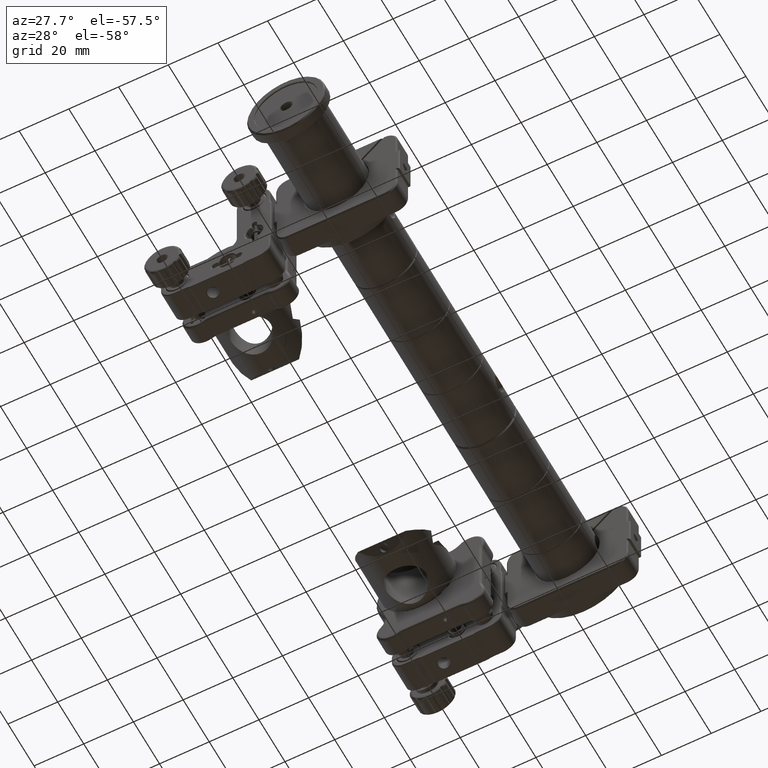
[diagram: clean part render]
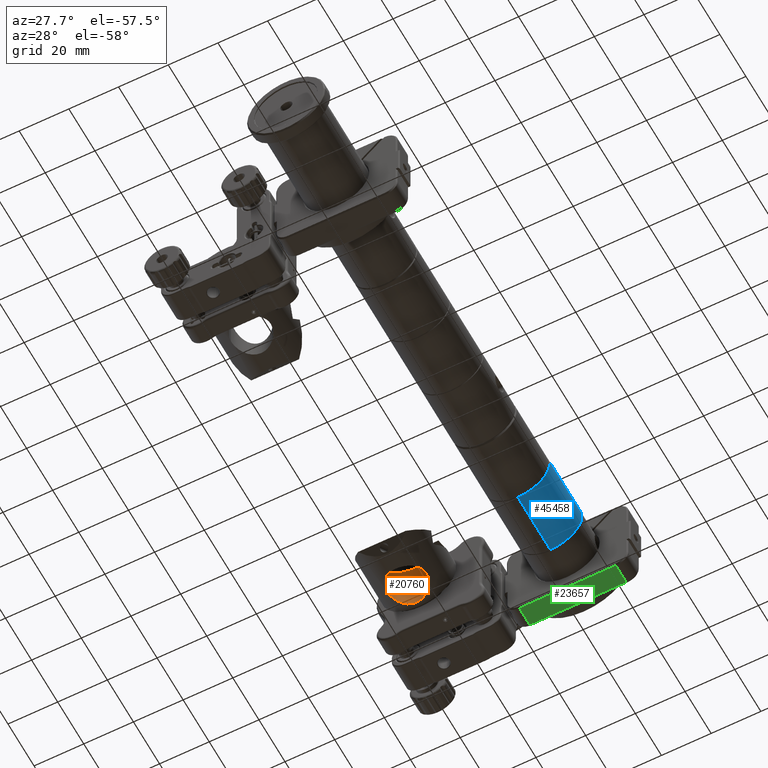
[diagram: same view with three faces highlighted in distinct colors, each labeled with its STEP entity id]
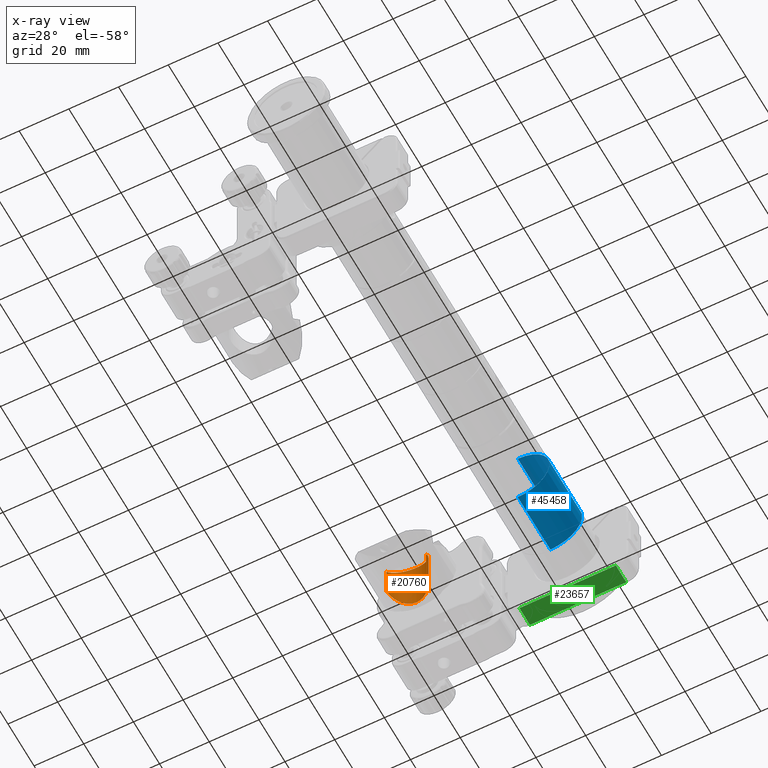
[diagram: x-ray of the same camera — body ghosted, the three highlighted faces saturated]
A machine part, auxiliary view with three faces highlighted in distinct colors.
The next image is the same camera in x-ray (body ghosted, the three faces saturated) — at least one of them is partly hidden behind the body in this view.
Their STEP definitions:

[orange] entity #20760 — the highlighted cylindrical surface (edge-blend (fillet) strip) has radius 8 mm, axis along (0, 0, 1).
#349 = CARTESIAN_POINT ( 'NONE',  ( -59.63535840696203400, -14.73379372571865200, -12.85222683185176100 ) ) ;
#376 = CARTESIAN_POINT ( 'NONE',  ( -43.96740624020648600, -15.77331678230626700, -12.73086655763751900 ) ) ;
#2326 = CARTESIAN_POINT ( 'NONE',  ( -49.04374593692489300, -9.366363103545635800, -14.72759322876122900 ) ) ;
#2379 = CARTESIAN_POINT ( 'NONE',  ( -59.90000000000014800, -16.84363471288829900, -12.68857754044948500 ) ) ;
#4256 =( BOUNDED_CURVE ( )  B_SPLINE_CURVE ( 3, ( #6059, #15693, #15509, #47172 ),
 .UNSPECIFIED., .F., .F. ) 
 B_SPLINE_CURVE_WITH_KNOTS ( ( 4, 4 ),
 ( 4.712388980384689700, 7.853981633974482800 ),
 .UNSPECIFIED. ) 
 CURVE ( )  GEOMETRIC_REPRESENTATION_ITEM ( )  RATIONAL_B_SPLINE_CURVE ( ( 1.000000000000000000, 0.3333333333333333700, 0.3333333333333333700, 1.000000000000000000 ) ) 
 REPRESENTATION_ITEM ( '' )  );
#4497 = CARTESIAN_POINT ( 'NONE',  ( -58.82325154266373300, -12.82672418749662100, -13.30743652911261200 ) ) ;
#4595 = LINE ( 'NONE', #18797, #49854 ) ;
#4686 = CARTESIAN_POINT ( 'NONE',  ( -54.51334824517828500, -9.277918688775976400, -14.77279957164269700 ) ) ;
#4881 = CARTESIAN_POINT ( 'NONE',  ( -59.90000000000015500, -16.31256464641122500, -12.68857754044948500 ) ) ;
#4907 = CARTESIAN_POINT ( 'NONE',  ( -44.11257777288847100, -14.99271165135742700, -12.82029098626782500 ) ) ;
#5093 = CARTESIAN_POINT ( 'NONE',  ( -44.33333784768578300, -14.23303700117035400, -12.95198035539512200 ) ) ;
#6059 = CARTESIAN_POINT ( 'NONE',  ( -43.89999999999994200, -16.84363471288829900, 8.960288348532814000E-014 ) ) ;
#6162 = VECTOR ( 'NONE', #43999, 1000.000000000000000 ) ;
#6870 = CARTESIAN_POINT ( 'NONE',  ( -49.28991020731979200, -9.276776697203709800, -14.77338439190171800 ) ) ;
#8130 = CARTESIAN_POINT ( 'NONE',  ( -51.90000000000004100, -8.843634712888198000, -15.00000000000003200 ) ) ;
#10394 = CARTESIAN_POINT ( 'NONE',  ( -47.00292856020301000, -10.49617367416404300, -14.18533946087028500 ) ) ;
#12349 = CARTESIAN_POINT ( 'NONE',  ( -59.90000000000014800, -16.84363471288829900, 15.22385620915023500 ) ) ;
#12857 = VERTEX_POINT ( 'NONE', #29375 ) ;
#13275 = CARTESIAN_POINT ( 'NONE',  ( -43.89999999999994200, -16.84363471288829900, 8.960288348532814000E-014 ) ) ;
#13553 = CARTESIAN_POINT ( 'NONE',  ( -54.00904379259162600, -9.122133415276739000, -14.85318587089765100 ) ) ;
#14140 = CARTESIAN_POINT ( 'NONE',  ( -45.89079483011231300, -11.55632142819604300, -13.74487954241183700 ) ) ;
#14530 = CARTESIAN_POINT ( 'NONE',  ( -43.91361012622812200, -16.30586058320728400, -12.69718802926073800 ) ) ;
#15421 = CYLINDRICAL_SURFACE ( 'NONE', #54099, 8.000000000000104800 ) ;
#15509 = CARTESIAN_POINT ( 'NONE',  ( -59.90000000000016200, -0.8436347128880917800, 16.00000000000063900 ) ) ;
#15693 = CARTESIAN_POINT ( 'NONE',  ( -43.89999999999994200, -0.8436347128880917800, 16.00000000000063600 ) ) ;
#18296 = CARTESIAN_POINT ( 'NONE',  ( -58.25614396339069100, -11.95821551452893200, -13.59054130451622600 ) ) ;
#18372 = EDGE_CURVE ( 'NONE', #12857, #53404, #38893, .T. ) ;
#18706 = CARTESIAN_POINT ( 'NONE',  ( -45.56339923907944500, -11.95346913890319300, -13.59704935660371000 ) ) ;
#18797 = CARTESIAN_POINT ( 'NONE',  ( -43.89999999999994200, -16.84363471288829900, 15.22385620915023500 ) ) ;
#20686 = CARTESIAN_POINT ( 'NONE',  ( -47.86777186066898800, -9.914514526530943800, -14.45497494079412900 ) ) ;
#20760 = ADVANCED_FACE ( 'NONE', ( #40929 ), #15421, .F. ) ;
#21771 = VERTEX_POINT ( 'NONE', #2379 ) ;
#22666 = CARTESIAN_POINT ( 'NONE',  ( -55.49299045899373800, -9.676384892923422900, -14.57182277508528600 ) ) ;
#22854 = CARTESIAN_POINT ( 'NONE',  ( -53.75317770107001500, -9.056726097640226000, -14.88737484036429700 ) ) ;
#22929 = ORIENTED_EDGE ( 'NONE', *, *, #18372, .F. ) ;
#25308 = EDGE_CURVE ( 'NONE', #21771, #45629, #54250, .T. ) ;
#26341 = EDGE_CURVE ( 'NONE', #53404, #21771, #34308, .T. ) ;
#26646 = CARTESIAN_POINT ( 'NONE',  ( -56.80612724011899700, -10.50350234351285500, -14.18208317508987000 ) ) ;
#27031 = CARTESIAN_POINT ( 'NONE',  ( -52.16638099603770200, -8.843634712888198000, -15.00000000000003700 ) ) ;
#27279 = ORIENTED_EDGE ( 'NONE', *, *, #25308, .F. ) ;
#27428 = CARTESIAN_POINT ( 'NONE',  ( -59.47970355668643100, -14.23279417818684900, -12.94607581582516400 ) ) ;
#27451 = CARTESIAN_POINT ( 'NONE',  ( -43.89999999999994200, -16.84363471288829900, -12.68857754044948600 ) ) ;
#29375 = CARTESIAN_POINT ( 'NONE',  ( -43.89999999999994200, -16.84363471288829900, -12.68857754044948600 ) ) ;
#29798 = CARTESIAN_POINT ( 'NONE',  ( -48.32359005587002100, -9.668650121797973900, -14.57566637414125800 ) ) ;
#31590 = CARTESIAN_POINT ( 'NONE',  ( -57.20849671120283400, -10.83677188141393600, -14.03468217593877700 ) ) ;
#31781 = ORIENTED_EDGE ( 'NONE', *, *, #34736, .T. ) ;
#31975 = CARTESIAN_POINT ( 'NONE',  ( -59.84765202344993200, -15.78437743089706700, -12.72204117017708400 ) ) ;
#31997 = CARTESIAN_POINT ( 'NONE',  ( -44.00738823750563000, -15.51076536837137700, -12.75580203211174900 ) ) ;
#32201 = CARTESIAN_POINT ( 'NONE',  ( -43.89999999999994900, -16.57670244805500200, -12.68857754044949000 ) ) ;
#34308 = B_SPLINE_CURVE_WITH_KNOTS ( 'NONE', 3,
 ( #40684, #27031, #40304, #45203, #54299, #22854, #13553, #4686, #53716, #22666, #36316, #26646, #31590, #54486, #18296, #45017, #4497, #36123, #45395, #27428, #349, #31975, #4881, #35741 ),
 .UNSPECIFIED., .F., .F.,
 ( 4, 2, 2, 2, 2, 2, 2, 2, 2, 2, 2, 4 ),
 ( 0.02551642818258202300, 0.02631280244010036900, 0.02710917669761871500, 0.02790555095513706100, 0.02870192521265540700, 0.03029467372769211900, 0.03188742224272883600, 0.03348017075776554100, 0.03427654501528389100, 0.03507291927280224000, 0.03666566778783895300, 0.03825841630287565900 ),
 .UNSPECIFIED. ) ;
#34736 = EDGE_CURVE ( 'NONE', #49276, #45629, #4256, .T. ) ;
#34952 = CARTESIAN_POINT ( 'NONE',  ( -59.90000000000014800, -16.84363471288829900, 8.960288348532814000E-014 ) ) ;
#35741 = CARTESIAN_POINT ( 'NONE',  ( -59.90000000000014800, -16.84363471288829900, -12.68857754044948500 ) ) ;
#35784 = CARTESIAN_POINT ( 'NONE',  ( -51.90000000000004100, -16.84363471288829900, 15.22385620915023500 ) ) ;
#36123 = CARTESIAN_POINT ( 'NONE',  ( -59.06840641771938700, -13.28260515356170200, -13.17699618007670300 ) ) ;
#36316 = CARTESIAN_POINT ( 'NONE',  ( -55.94914072308603900, -9.924688090599159900, -14.45012204398464900 ) ) ;
#37511 = CARTESIAN_POINT ( 'NONE',  ( -50.83934835912857200, -8.896381222233712200, -14.97166650715896600 ) ) ;
#38893 = B_SPLINE_CURVE_WITH_KNOTS ( 'NONE', 3,
 ( #27451, #32201, #14530, #376, #31997, #4907, #45623, #5093, #46000, #55263, #41672, #41280, #18706, #14140, #46197, #54887, #10394, #20686, #29798, #2326, #6870, #57065, #52146, #37511, #42052, #47601 ),
 .UNSPECIFIED., .F., .F.,
 ( 4, 2, 2, 2, 2, 2, 2, 2, 2, 2, 2, 2, 4 ),
 ( 0.01276757034206472600, 0.01356437395709705700, 0.01436117757212938700, 0.01515798118716172300, 0.01595478480219405700, 0.01754839203225872600, 0.01834519564729106300, 0.01914199926232339900, 0.02073560649238805100, 0.02232921372245270900, 0.02312601733748503500, 0.02392282095251736400, 0.02551642818258202300 ),
 .UNSPECIFIED. ) ;
#40304 = CARTESIAN_POINT ( 'NONE',  ( -52.43543996369143700, -8.857047829954074900, -14.99283321040807600 ) ) ;
#40684 = CARTESIAN_POINT ( 'NONE',  ( -51.90000000000004100, -8.843634712888198000, -15.00000000000003200 ) ) ;
#40929 = FACE_OUTER_BOUND ( 'NONE', #45656, .T. ) ;
#41280 = CARTESIAN_POINT ( 'NONE',  ( -45.40778133963682700, -12.16198187483118400, -13.52320181177040200 ) ) ;
#41672 = CARTESIAN_POINT ( 'NONE',  ( -44.97488250446132700, -12.80508876252389600, -13.30963219538150000 ) ) ;
#42052 = CARTESIAN_POINT ( 'NONE',  ( -51.36695077442581700, -8.843634712888201600, -15.00000000000003600 ) ) ;
#43999 = DIRECTION ( 'NONE',  ( 0.0000000000000000000, 8.204656390015226500E-017, 1.000000000000000000 ) ) ;
#45017 = CARTESIAN_POINT ( 'NONE',  ( -58.68853605656795500, -12.60302745502532700, -13.37690633020039100 ) ) ;
#45203 = CARTESIAN_POINT ( 'NONE',  ( -52.97037201097392500, -8.911007799217234300, -14.96415875978188100 ) ) ;
#45395 = CARTESIAN_POINT ( 'NONE',  ( -59.17967062678677300, -13.51594870881263200, -13.11562395864504000 ) ) ;
#45623 = CARTESIAN_POINT ( 'NONE',  ( -44.17778720822404600, -14.73720974669012700, -12.85984451120375000 ) ) ;
#45629 = VERTEX_POINT ( 'NONE', #34952 ) ;
#45656 = EDGE_LOOP ( 'NONE', ( #22929, #49913, #31781, #27279, #51009 ) ) ;
#46000 = CARTESIAN_POINT ( 'NONE',  ( -44.42419470030297600, -13.98340980101714100, -13.00484229207791700 ) ) ;
#46197 = CARTESIAN_POINT ( 'NONE',  ( -46.06307592061169500, -11.36679808500186100, -13.81913387922053000 ) ) ;
#47172 = CARTESIAN_POINT ( 'NONE',  ( -59.90000000000014800, -16.84363471288829900, 8.960288348532814000E-014 ) ) ;
#47601 = CARTESIAN_POINT ( 'NONE',  ( -51.90000000000004100, -8.843634712888198000, -15.00000000000003200 ) ) ;
#49043 = DIRECTION ( 'NONE',  ( -1.000000000000000000, 0.0000000000000000000, 0.0000000000000000000 ) ) ;
#49276 = VERTEX_POINT ( 'NONE', #13275 ) ;
#49854 = VECTOR ( 'NONE', #49883, 1000.000000000000000 ) ;
#49883 = DIRECTION ( 'NONE',  ( 0.0000000000000000000, 8.204656390015226500E-017, 1.000000000000000000 ) ) ;
#49913 = ORIENTED_EDGE ( 'NONE', *, *, #54149, .T. ) ;
#51009 = ORIENTED_EDGE ( 'NONE', *, *, #26341, .F. ) ;
#52146 = CARTESIAN_POINT ( 'NONE',  ( -50.05602517677289100, -9.054494077471135300, -14.88854263611863300 ) ) ;
#53404 = VERTEX_POINT ( 'NONE', #8130 ) ;
#53716 = CARTESIAN_POINT ( 'NONE',  ( -54.76277857063624300, -9.368725920096283100, -14.72638444127531100 ) ) ;
#53947 = DIRECTION ( 'NONE',  ( 0.0000000000000000000, 8.204656390015226500E-017, 1.000000000000000000 ) ) ;
#54099 = AXIS2_PLACEMENT_3D ( 'NONE', #35784, #53947, #49043 ) ;
#54149 = EDGE_CURVE ( 'NONE', #12857, #49276, #4595, .T. ) ;
#54250 = LINE ( 'NONE', #12349, #6162 ) ;
#54299 = CARTESIAN_POINT ( 'NONE',  ( -53.23384128288158500, -8.951164832930025700, -14.94285998935062300 ) ) ;
#54486 = CARTESIAN_POINT ( 'NONE',  ( -57.93143509999678300, -11.56307328028224100, -13.73951351929870600 ) ) ;
#54887 = CARTESIAN_POINT ( 'NONE',  ( -46.60574053353670400, -10.82429045207663700, -14.04006382546808100 ) ) ;
#55263 = CARTESIAN_POINT ( 'NONE',  ( -44.72871842588327200, -13.25937380070623600, -13.17676258676307400 ) ) ;
#57065 = CARTESIAN_POINT ( 'NONE',  ( -49.79523539417792200, -9.120948981262133200, -14.85380156965944000 ) ) ;

[blue] entity #45458 — the highlighted cylindrical surface (edge-blend (fillet) strip) has radius 12.75 mm, axis along (-0, -1, -0).
#307 = VERTEX_POINT ( 'NONE', #8635 ) ;
#1377 = EDGE_CURVE ( 'NONE', #52160, #4827, #26564, .T. ) ;
#1632 = CYLINDRICAL_SURFACE ( 'NONE', #25936, 12.74999999999999800 ) ;
#3758 = DIRECTION ( 'NONE',  ( 0.0000000000000000000, 0.0000000000000000000, 1.000000000000000000 ) ) ;
#3942 = ORIENTED_EDGE ( 'NONE', *, *, #1377, .F. ) ;
#4827 = VERTEX_POINT ( 'NONE', #31202 ) ;
#5635 = EDGE_CURVE ( 'NONE', #4827, #307, #18310, .T. ) ;
#5650 = LINE ( 'NONE', #23076, #40332 ) ;
#6674 = CARTESIAN_POINT ( 'NONE',  ( 0.0000000000000000000, -63.76289373922437400, 0.0000000000000000000 ) ) ;
#8628 = VERTEX_POINT ( 'NONE', #18085 ) ;
#8635 = CARTESIAN_POINT ( 'NONE',  ( 0.0000000000000000000, -30.11470252475409400, -12.75000000000000200 ) ) ;
#11206 = DIRECTION ( 'NONE',  ( -0.0000000000000000000, -1.000000000000000000, -0.0000000000000000000 ) ) ;
#12088 = DIRECTION ( 'NONE',  ( -0.0000000000000000000, -1.000000000000000000, -0.0000000000000000000 ) ) ;
#14344 = FACE_OUTER_BOUND ( 'NONE', #51614, .T. ) ;
#14661 = ORIENTED_EDGE ( 'NONE', *, *, #37321, .T. ) ;
#16663 = DIRECTION ( 'NONE',  ( 0.0000000000000000000, 0.0000000000000000000, 1.000000000000000000 ) ) ;
#18085 = CARTESIAN_POINT ( 'NONE',  ( 1.561424668912875300E-015, -30.11470252475409400, 12.75000000000000200 ) ) ;
#18310 = LINE ( 'NONE', #57349, #24686 ) ;
#21196 = CIRCLE ( 'NONE', #44834, 12.75000000000000200 ) ;
#23076 = CARTESIAN_POINT ( 'NONE',  ( 1.561424668912874900E-015, -63.76289373922437400, 12.74999999999999800 ) ) ;
#24686 = VECTOR ( 'NONE', #12088, 1000.000000000000000 ) ;
#25178 = ORIENTED_EDGE ( 'NONE', *, *, #57643, .T. ) ;
#25936 = AXIS2_PLACEMENT_3D ( 'NONE', #6674, #11206, #34581 ) ;
#26564 = CIRCLE ( 'NONE', #55968, 12.75000000000000200 ) ;
#27834 = DIRECTION ( 'NONE',  ( -0.0000000000000000000, -1.000000000000000000, -0.0000000000000000000 ) ) ;
#30340 = CARTESIAN_POINT ( 'NONE',  ( 0.0000000000000000000, -30.11470252475409400, 0.0000000000000000000 ) ) ;
#31202 = CARTESIAN_POINT ( 'NONE',  ( 0.0000000000000000000, -5.114702524754092900, -12.75000000000000200 ) ) ;
#34581 = DIRECTION ( 'NONE',  ( 0.0000000000000000000, 0.0000000000000000000, -1.000000000000000000 ) ) ;
#37321 = EDGE_CURVE ( 'NONE', #8628, #307, #21196, .T. ) ;
#40332 = VECTOR ( 'NONE', #27834, 1000.000000000000000 ) ;
#43404 = DIRECTION ( 'NONE',  ( -0.0000000000000000000, 1.000000000000000000, -0.0000000000000000000 ) ) ;
#44834 = AXIS2_PLACEMENT_3D ( 'NONE', #30340, #43404, #16663 ) ;
#45458 = ADVANCED_FACE ( 'NONE', ( #14344 ), #1632, .T. ) ;
#45768 = ORIENTED_EDGE ( 'NONE', *, *, #5635, .F. ) ;
#51614 = EDGE_LOOP ( 'NONE', ( #3942, #25178, #14661, #45768 ) ) ;
#52160 = VERTEX_POINT ( 'NONE', #55701 ) ;
#53372 = CARTESIAN_POINT ( 'NONE',  ( 0.0000000000000000000, -5.114702524754092900, 0.0000000000000000000 ) ) ;
#55701 = CARTESIAN_POINT ( 'NONE',  ( 1.561424668912875300E-015, -5.114702524754092900, 12.75000000000000200 ) ) ;
#55968 = AXIS2_PLACEMENT_3D ( 'NONE', #53372, #58079, #3758 ) ;
#57349 = CARTESIAN_POINT ( 'NONE',  ( 0.0000000000000000000, -63.76289373922437400, -12.74999999999999800 ) ) ;
#57643 = EDGE_CURVE ( 'NONE', #52160, #8628, #5650, .T. ) ;
#58079 = DIRECTION ( 'NONE',  ( -0.0000000000000000000, 1.000000000000000000, -0.0000000000000000000 ) ) ;

[green] entity #23657 — the highlighted planar face has unit normal (0, 0, 1).
#1025 = DIRECTION ( 'NONE',  ( -1.000000000000000000, 0.0000000000000000000, 0.0000000000000000000 ) ) ;
#9923 = EDGE_CURVE ( 'NONE', #56864, #33696, #58542, .T. ) ;
#12540 = EDGE_CURVE ( 'NONE', #26053, #55941, #14369, .T. ) ;
#13318 = PLANE ( 'NONE',  #48580 ) ;
#13742 = CARTESIAN_POINT ( 'NONE',  ( 19.39999999999999900, 16.08529747524592300, -19.04999999999999000 ) ) ;
#14369 = LINE ( 'NONE', #55321, #41987 ) ;
#15373 = VECTOR ( 'NONE', #20484, 1000.000000000000000 ) ;
#15615 = DIRECTION ( 'NONE',  ( 1.000000000000000000, 0.0000000000000000000, 0.0000000000000000000 ) ) ;
#16409 = CARTESIAN_POINT ( 'NONE',  ( 19.39999999999999900, 8.085297475245925000, -19.04999999999999000 ) ) ;
#18327 = CARTESIAN_POINT ( 'NONE',  ( 1.079285160001940100E-014, 16.08529747524590900, -19.05000000000000400 ) ) ;
#19450 = VECTOR ( 'NONE', #35939, 1000.000000000000000 ) ;
#20484 = DIRECTION ( 'NONE',  ( -0.0000000000000000000, -1.000000000000000000, -0.0000000000000000000 ) ) ;
#20997 = ORIENTED_EDGE ( 'NONE', *, *, #9923, .T. ) ;
#23657 = ADVANCED_FACE ( 'NONE', ( #53472 ), #13318, .F. ) ;
#26053 = VERTEX_POINT ( 'NONE', #41896 ) ;
#26378 = EDGE_CURVE ( 'NONE', #38807, #56864, #43571, .T. ) ;
#28341 = CARTESIAN_POINT ( 'NONE',  ( -19.39999999999999900, 8.085297475245925000, -19.04999999999998600 ) ) ;
#29208 = CARTESIAN_POINT ( 'NONE',  ( 19.39999999999999900, 20.28529747524592300, -19.04999999999999000 ) ) ;
#29548 = LINE ( 'NONE', #38219, #36630 ) ;
#31740 = CARTESIAN_POINT ( 'NONE',  ( -19.39999999999999900, 20.28529747524592300, -19.04999999999999000 ) ) ;
#32310 = LINE ( 'NONE', #41937, #56338 ) ;
#32571 = EDGE_CURVE ( 'NONE', #26053, #38807, #29548, .T. ) ;
#33696 = VERTEX_POINT ( 'NONE', #16409 ) ;
#35939 = DIRECTION ( 'NONE',  ( 1.000000000000000000, 0.0000000000000000000, 0.0000000000000000000 ) ) ;
#36630 = VECTOR ( 'NONE', #15615, 1000.000000000000000 ) ;
#38219 = CARTESIAN_POINT ( 'NONE',  ( 0.0000000000000000000, 16.08529747524592300, -19.04999999999999000 ) ) ;
#38807 = VERTEX_POINT ( 'NONE', #18327 ) ;
#41029 = EDGE_CURVE ( 'NONE', #33696, #55941, #32310, .T. ) ;
#41896 = CARTESIAN_POINT ( 'NONE',  ( -19.39999999999999900, 16.08529747524592300, -19.04999999999998600 ) ) ;
#41937 = CARTESIAN_POINT ( 'NONE',  ( -19.39999999999999900, 8.085297475245925000, -19.04999999999999000 ) ) ;
#41987 = VECTOR ( 'NONE', #55525, 1000.000000000000000 ) ;
#43571 = LINE ( 'NONE', #13742, #19450 ) ;
#44264 = CARTESIAN_POINT ( 'NONE',  ( 19.39999999999999900, 16.08529747524592300, -19.04999999999999000 ) ) ;
#44966 = DIRECTION ( 'NONE',  ( 1.000000000000000000, 0.0000000000000000000, -0.0000000000000000000 ) ) ;
#45793 = ORIENTED_EDGE ( 'NONE', *, *, #26378, .T. ) ;
#48580 = AXIS2_PLACEMENT_3D ( 'NONE', #31740, #49542, #44966 ) ;
#49542 = DIRECTION ( 'NONE',  ( 0.0000000000000000000, 0.0000000000000000000, 1.000000000000000000 ) ) ;
#50640 = ORIENTED_EDGE ( 'NONE', *, *, #41029, .T. ) ;
#50939 = EDGE_LOOP ( 'NONE', ( #20997, #50640, #53515, #52058, #45793 ) ) ;
#52058 = ORIENTED_EDGE ( 'NONE', *, *, #32571, .T. ) ;
#53472 = FACE_OUTER_BOUND ( 'NONE', #50939, .T. ) ;
#53515 = ORIENTED_EDGE ( 'NONE', *, *, #12540, .F. ) ;
#55321 = CARTESIAN_POINT ( 'NONE',  ( -19.39999999999999900, 20.28529747524592300, -19.04999999999998600 ) ) ;
#55525 = DIRECTION ( 'NONE',  ( -0.0000000000000000000, -1.000000000000000000, -0.0000000000000000000 ) ) ;
#55941 = VERTEX_POINT ( 'NONE', #28341 ) ;
#56338 = VECTOR ( 'NONE', #1025, 1000.000000000000000 ) ;
#56864 = VERTEX_POINT ( 'NONE', #44264 ) ;
#58542 = LINE ( 'NONE', #29208, #15373 ) ;